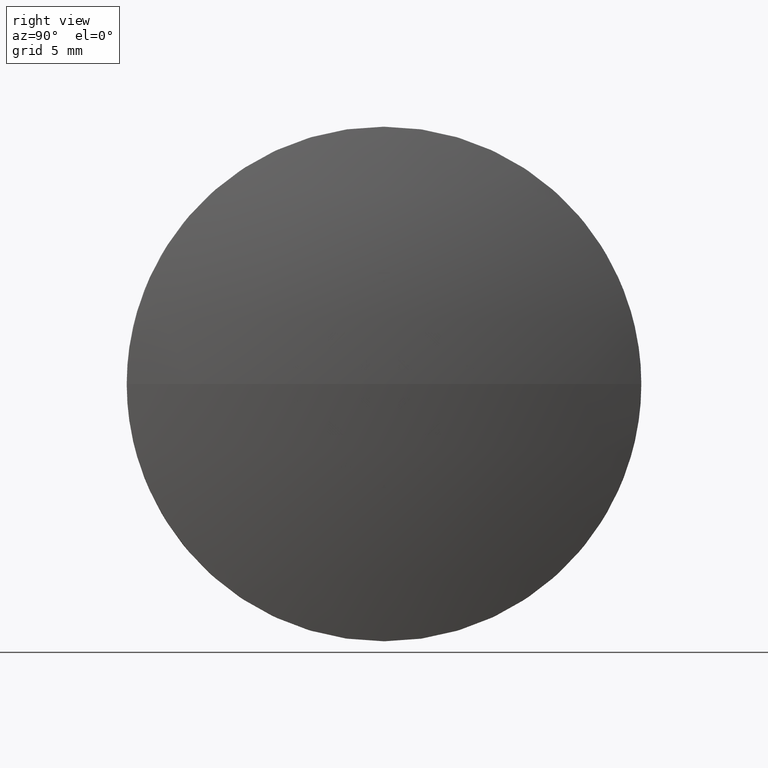
[diagram: clean part render]
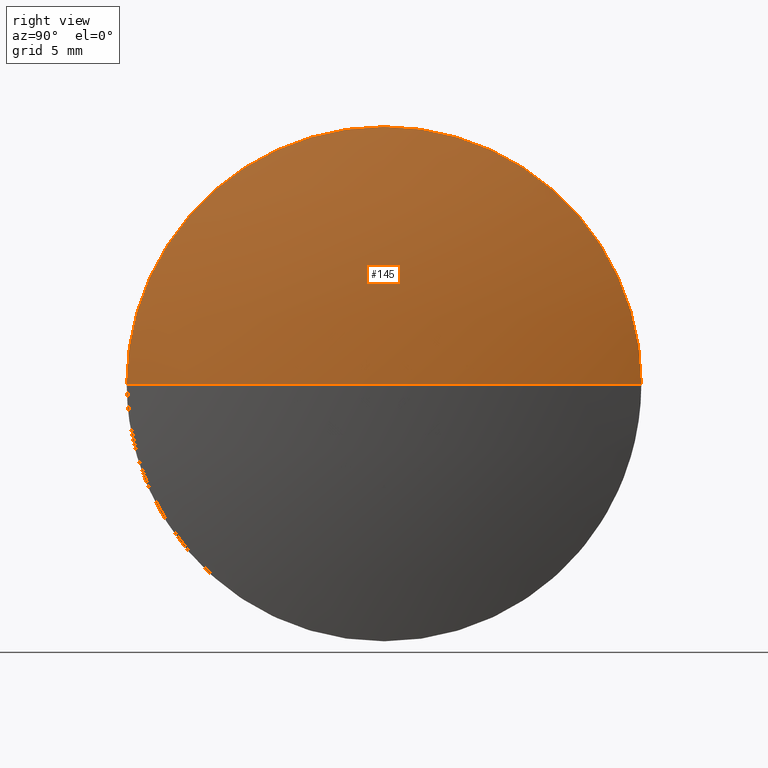
[diagram: same view with one face highlighted and labeled with its STEP entity id]
A machine part, right view. The second image highlights one B-rep face of the part: STEP entity #145.
In plain terms, the highlighted spherical surface has radius 51.5005 mm.
Its self-contained STEP definition (entity closure, byte-faithful):
#1 = SPHERICAL_SURFACE ( 'NONE', #51, 51.50051948051950700 ) ;
#7 = CARTESIAN_POINT ( 'NONE',  ( 8.599504782206111000, 32.62964536423902500, 0.0000000000000000000 ) ) ;
#8 = CARTESIAN_POINT ( 'NONE',  ( 8.599504782206111000, 32.62964536423902500, 0.0000000000000000000 ) ) ;
#12 = AXIS2_PLACEMENT_3D ( 'NONE', #135, #120, #161 ) ;
#13 = DIRECTION ( 'NONE',  ( 0.0000000000000000000, 1.000000000000000000, 1.224646799147353200E-016 ) ) ;
#17 = DIRECTION ( 'NONE',  ( 0.0000000000000000000, 1.000000000000000000, 0.0000000000000000000 ) ) ;
#22 = EDGE_CURVE ( 'NONE', #89, #159, #174, .T. ) ;
#32 = EDGE_CURVE ( 'NONE', #91, #37, #70, .T. ) ;
#37 = VERTEX_POINT ( 'NONE', #177 ) ;
#44 = FACE_OUTER_BOUND ( 'NONE', #186, .T. ) ;
#45 = ORIENTED_EDGE ( 'NONE', *, *, #48, .T. ) ;
#48 = EDGE_CURVE ( 'NONE', #91, #159, #148, .T. ) ;
#51 = AXIS2_PLACEMENT_3D ( 'NONE', #7, #93, #17 ) ;
#52 = CARTESIAN_POINT ( 'NONE',  ( 58.56002426272561900, 32.62964536423902500, 0.0000000000000000000 ) ) ;
#60 = DIRECTION ( 'NONE',  ( -1.000000000000000000, -0.0000000000000000000, -0.0000000000000000000 ) ) ;
#62 = CARTESIAN_POINT ( 'NONE',  ( 60.10002426272561800, 32.62964536423902500, 0.0000000000000000000 ) ) ;
#67 = AXIS2_PLACEMENT_3D ( 'NONE', #52, #60, #156 ) ;
#70 = CIRCLE ( 'NONE', #152, 51.50051948051950700 ) ;
#79 = CIRCLE ( 'NONE', #67, 12.49999999999999600 ) ;
#81 = ORIENTED_EDGE ( 'NONE', *, *, #22, .F. ) ;
#83 = ORIENTED_EDGE ( 'NONE', *, *, #32, .F. ) ;
#89 = VERTEX_POINT ( 'NONE', #115 ) ;
#91 = VERTEX_POINT ( 'NONE', #62 ) ;
#93 = DIRECTION ( 'NONE',  ( -0.0000000000000000000, 0.0000000000000000000, -1.000000000000000000 ) ) ;
#99 = CARTESIAN_POINT ( 'NONE',  ( 8.599504782206111000, 32.62964536423902500, 0.0000000000000000000 ) ) ;
#115 = CARTESIAN_POINT ( 'NONE',  ( 58.56002426272561900, 32.62964536423902500, 12.49999999999999600 ) ) ;
#116 = AXIS2_PLACEMENT_3D ( 'NONE', #8, #123, #162 ) ;
#120 = DIRECTION ( 'NONE',  ( -1.000000000000000000, -0.0000000000000000000, -0.0000000000000000000 ) ) ;
#123 = DIRECTION ( 'NONE',  ( -0.0000000000000000000, 0.0000000000000000000, 1.000000000000000000 ) ) ;
#127 = EDGE_CURVE ( 'NONE', #37, #89, #79, .T. ) ;
#128 = CARTESIAN_POINT ( 'NONE',  ( 58.56002426272561900, 45.12964536423902500, 0.0000000000000000000 ) ) ;
#135 = CARTESIAN_POINT ( 'NONE',  ( 58.56002426272561900, 32.62964536423902500, 0.0000000000000000000 ) ) ;
#145 = ADVANCED_FACE ( 'NONE', ( #44 ), #1, .T. ) ;
#148 = CIRCLE ( 'NONE', #116, 51.50051948051950700 ) ;
#152 = AXIS2_PLACEMENT_3D ( 'NONE', #99, #153, #13 ) ;
#153 = DIRECTION ( 'NONE',  ( 0.0000000000000000000, 1.224646799147353200E-016, -1.000000000000000000 ) ) ;
#156 = DIRECTION ( 'NONE',  ( 0.0000000000000000000, 0.0000000000000000000, 1.000000000000000000 ) ) ;
#159 = VERTEX_POINT ( 'NONE', #128 ) ;
#161 = DIRECTION ( 'NONE',  ( 0.0000000000000000000, 0.0000000000000000000, 1.000000000000000000 ) ) ;
#162 = DIRECTION ( 'NONE',  ( 1.000000000000000000, 0.0000000000000000000, 0.0000000000000000000 ) ) ;
#174 = CIRCLE ( 'NONE', #12, 12.49999999999999600 ) ;
#177 = CARTESIAN_POINT ( 'NONE',  ( 58.56002426272561900, 20.12964536423902500, -1.530808498934191500E-015 ) ) ;
#183 = ORIENTED_EDGE ( 'NONE', *, *, #127, .F. ) ;
#186 = EDGE_LOOP ( 'NONE', ( #83, #45, #81, #183 ) ) ;